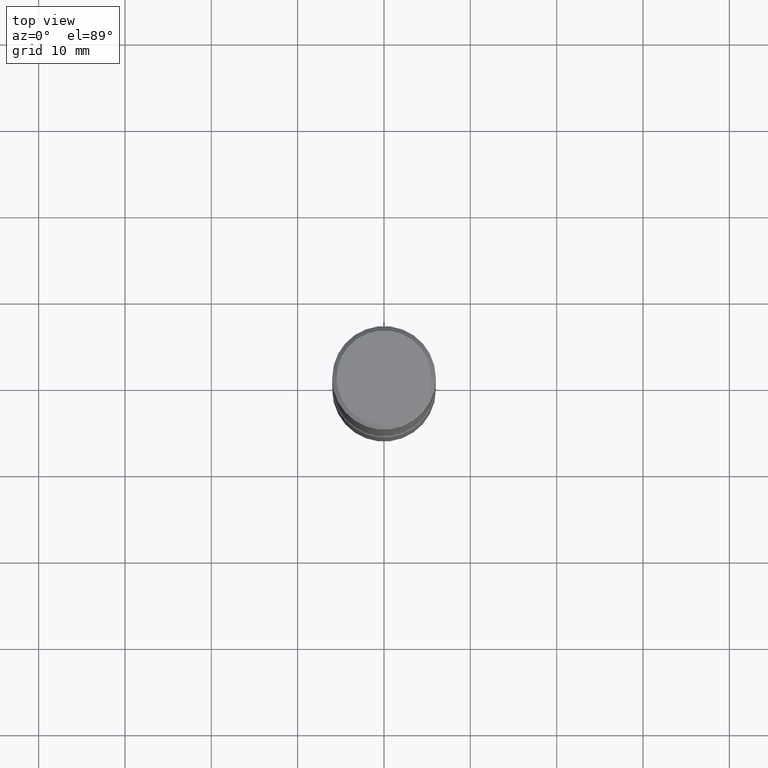
[diagram: clean part render]
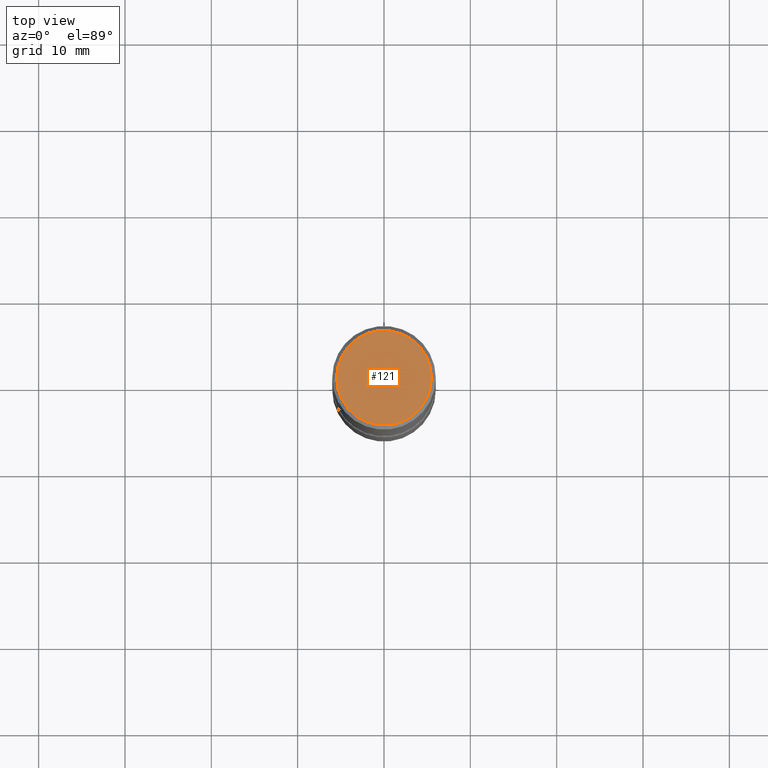
[diagram: same view with one face highlighted and labeled with its STEP entity id]
A machine part, top view. The second image highlights one B-rep face of the part: STEP entity #121.
In plain terms, the highlighted planar face has unit normal (0, -0, -1).
Its self-contained STEP definition (entity closure, byte-faithful):
#18 = VERTEX_POINT ( 'NONE', #372 ) ;
#41 = CARTESIAN_POINT ( 'NONE',  ( -0.2162000000000000033, 1.544631344304202170E-15, -2.134256245051273683E-17 ) ) ;
#67 = EDGE_CURVE ( 'NONE', #237, #18, #494, .T. ) ;
#75 = DIRECTION ( 'NONE',  ( -1.000000000000000000, 6.982962677686265922E-15, -4.876176775795935793E-29 ) ) ;
#110 = ORIENTED_EDGE ( 'NONE', *, *, #67, .T. ) ;
#119 = DIRECTION ( 'NONE',  ( 2.438088387897960049E-29, -3.491481338843145188E-15, -1.000000000000000000 ) ) ;
#121 = ADVANCED_FACE ( 'NONE', ( #297 ), #508, .F. ) ;
#162 = DIRECTION ( 'NONE',  ( -2.445468806185136597E-29, 3.491481338843145583E-15, 1.000000000000000000 ) ) ;
#197 = EDGE_CURVE ( 'NONE', #18, #237, #201, .T. ) ;
#201 = CIRCLE ( 'NONE', #381, 0.2162000000000000033 ) ;
#229 = AXIS2_PLACEMENT_3D ( 'NONE', #341, #464, #249 ) ;
#237 = VERTEX_POINT ( 'NONE', #41 ) ;
#249 = DIRECTION ( 'NONE',  ( 1.000000000000000000, -6.982962677686266711E-15, 4.876655451117825523E-29 ) ) ;
#251 = CARTESIAN_POINT ( 'NONE',  ( 1.509716530915770718E-15, 0.2162000000000000033, -7.655295466831390880E-16 ) ) ;
#290 = DIRECTION ( 'NONE',  ( 1.000000000000000000, -6.982962677686266711E-15, 4.876655451117825523E-29 ) ) ;
#297 = FACE_OUTER_BOUND ( 'NONE', #389, .T. ) ;
#341 = CARTESIAN_POINT ( 'NONE',  ( 5.219257071676098903E-46, -7.451715851902235727E-32, -2.134256245050205639E-17 ) ) ;
#372 = CARTESIAN_POINT ( 'NONE',  ( 0.2162000000000000033, -1.586759460484351988E-15, -2.134256245049122805E-17 ) ) ;
#381 = AXIS2_PLACEMENT_3D ( 'NONE', #461, #162, #290 ) ;
#389 = EDGE_LOOP ( 'NONE', ( #110, #492 ) ) ;
#428 = AXIS2_PLACEMENT_3D ( 'NONE', #251, #119, #75 ) ;
#461 = CARTESIAN_POINT ( 'NONE',  ( 5.219257071676098903E-46, -7.451715851902235727E-32, -2.134256245050205639E-17 ) ) ;
#464 = DIRECTION ( 'NONE',  ( -2.445468806185136597E-29, 3.491481338843145583E-15, 1.000000000000000000 ) ) ;
#492 = ORIENTED_EDGE ( 'NONE', *, *, #197, .T. ) ;
#494 = CIRCLE ( 'NONE', #229, 0.2162000000000000033 ) ;
#508 = PLANE ( 'NONE',  #428 ) ;